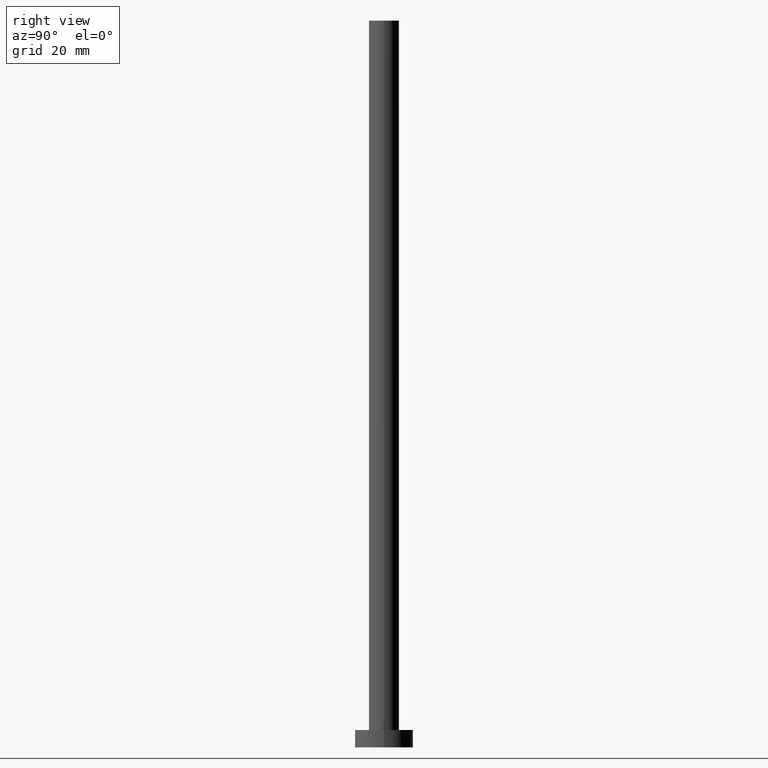
[diagram: clean part render]
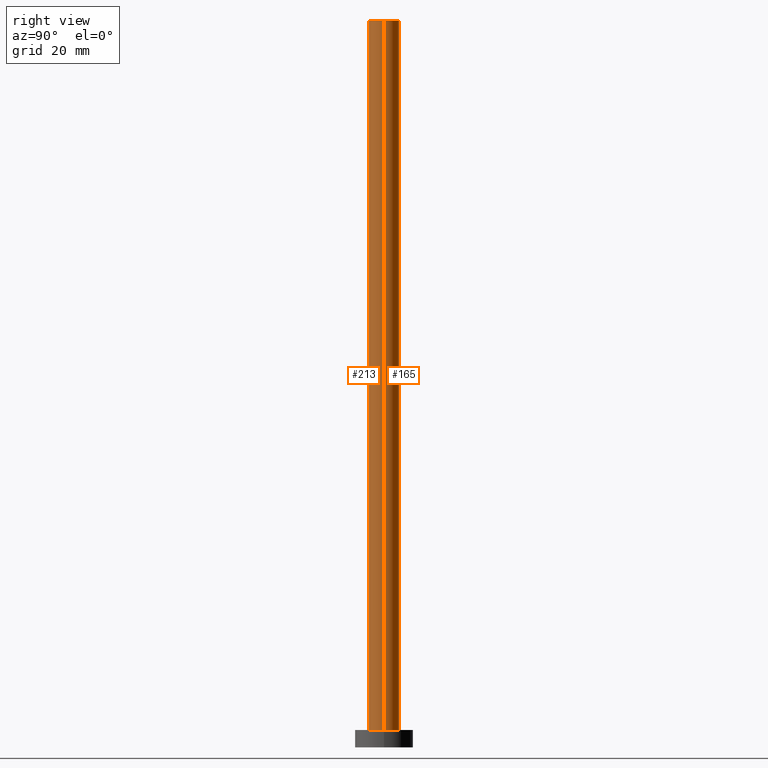
[diagram: same view with one multi-face feature highlighted, each face labeled with its STEP entity id]
A machine part, right view. The highlighted faces form ONE feature: a constant-radius fillet chain: 2 tangent blend faces with common blend radius 2.6 mm. The faces share edges in the B-rep.
Their STEP definitions:
[1] entity #165 (Cylinder):
#4 = DIRECTION ( 'NONE',  ( -1.000000000000000000, 0.000000000000000000, 0.000000000000000000 ) ) ;
#10 = ORIENTED_EDGE ( 'NONE', *, *, #112, .F. ) ;
#17 = VECTOR ( 'NONE', #118, 1000.000000000000000 ) ;
#23 = VERTEX_POINT ( 'NONE', #224 ) ;
#47 = LINE ( 'NONE', #133, #17 ) ;
#55 = CARTESIAN_POINT ( 'NONE',  ( 0.000000000000000000, 0.000000000000000000, 125.0000000000000000 ) ) ;
#69 = CARTESIAN_POINT ( 'NONE',  ( 0.000000000000000000, 0.000000000000000000, 3.000000000000000000 ) ) ;
#83 = DIRECTION ( 'NONE',  ( 0.000000000000000000, 0.000000000000000000, 1.000000000000000000 ) ) ;
#87 = LINE ( 'NONE', #173, #215 ) ;
#91 = ORIENTED_EDGE ( 'NONE', *, *, #233, .T. ) ;
#106 = CARTESIAN_POINT ( 'NONE',  ( 0.000000000000000000, 0.000000000000000000, 125.0000000000000000 ) ) ;
#107 = VERTEX_POINT ( 'NONE', #161 ) ;
#112 = EDGE_CURVE ( 'NONE', #107, #221, #87, .T. ) ;
#118 = DIRECTION ( 'NONE',  ( -0.000000000000000000, -0.000000000000000000, -1.000000000000000000 ) ) ;
#126 = ORIENTED_EDGE ( 'NONE', *, *, #153, .T. ) ;
#128 = DIRECTION ( 'NONE',  ( 1.000000000000000000, 0.000000000000000000, 0.000000000000000000 ) ) ;
#133 = CARTESIAN_POINT ( 'NONE',  ( 2.600000000000000089, 3.184081677783117698E-16, 125.0000000000000000 ) ) ;
#135 = DIRECTION ( 'NONE',  ( -0.000000000000000000, -0.000000000000000000, -1.000000000000000000 ) ) ;
#142 = DIRECTION ( 'NONE',  ( 0.000000000000000000, 0.000000000000000000, 1.000000000000000000 ) ) ;
#146 = AXIS2_PLACEMENT_3D ( 'NONE', #55, #142, #219 ) ;
#153 = EDGE_CURVE ( 'NONE', #23, #209, #47, .T. ) ;
#161 = CARTESIAN_POINT ( 'NONE',  ( -2.600000000000000089, 0.000000000000000000, 125.0000000000000000 ) ) ;
#165 = ADVANCED_FACE ( 'NONE', ( #236 ), #220, .T. ) ;
#167 = CIRCLE ( 'NONE', #146, 2.600000000000000089 ) ;
#171 = CIRCLE ( 'NONE', #237, 2.600000000000000089 ) ;
#173 = CARTESIAN_POINT ( 'NONE',  ( -2.600000000000000089, 0.000000000000000000, 125.0000000000000000 ) ) ;
#183 = EDGE_CURVE ( 'NONE', #23, #107, #167, .T. ) ;
#186 = EDGE_LOOP ( 'NONE', ( #187, #126, #91, #10 ) ) ;
#187 = ORIENTED_EDGE ( 'NONE', *, *, #183, .F. ) ;
#197 = AXIS2_PLACEMENT_3D ( 'NONE', #106, #239, #4 ) ;
#198 = CARTESIAN_POINT ( 'NONE',  ( 2.600000000000000089, 3.184081677783117698E-16, 3.000000000000000000 ) ) ;
#209 = VERTEX_POINT ( 'NONE', #198 ) ;
#215 = VECTOR ( 'NONE', #135, 1000.000000000000000 ) ;
#219 = DIRECTION ( 'NONE',  ( 1.000000000000000000, 0.000000000000000000, 0.000000000000000000 ) ) ;
#220 = CYLINDRICAL_SURFACE ( 'NONE', #197, 2.600000000000000089 ) ;
#221 = VERTEX_POINT ( 'NONE', #252 ) ;
#224 = CARTESIAN_POINT ( 'NONE',  ( 2.600000000000000089, 3.184081677783117698E-16, 125.0000000000000000 ) ) ;
#233 = EDGE_CURVE ( 'NONE', #209, #221, #171, .T. ) ;
#236 = FACE_OUTER_BOUND ( 'NONE', #186, .T. ) ;
#237 = AXIS2_PLACEMENT_3D ( 'NONE', #69, #83, #128 ) ;
#239 = DIRECTION ( 'NONE',  ( -0.000000000000000000, -0.000000000000000000, -1.000000000000000000 ) ) ;
#252 = CARTESIAN_POINT ( 'NONE',  ( -2.600000000000000089, 0.000000000000000000, 3.000000000000000000 ) ) ;
[2] entity #213 (Cylinder):
#7 = ORIENTED_EDGE ( 'NONE', *, *, #31, .T. ) ;
#12 = AXIS2_PLACEMENT_3D ( 'NONE', #76, #155, #241 ) ;
#17 = VECTOR ( 'NONE', #118, 1000.000000000000000 ) ;
#23 = VERTEX_POINT ( 'NONE', #224 ) ;
#25 = CYLINDRICAL_SURFACE ( 'NONE', #12, 2.600000000000000089 ) ;
#31 = EDGE_CURVE ( 'NONE', #221, #209, #177, .T. ) ;
#32 = AXIS2_PLACEMENT_3D ( 'NONE', #206, #250, #67 ) ;
#42 = EDGE_CURVE ( 'NONE', #107, #23, #162, .T. ) ;
#47 = LINE ( 'NONE', #133, #17 ) ;
#51 = DIRECTION ( 'NONE',  ( 1.000000000000000000, 0.000000000000000000, 0.000000000000000000 ) ) ;
#67 = DIRECTION ( 'NONE',  ( 1.000000000000000000, 0.000000000000000000, 0.000000000000000000 ) ) ;
#76 = CARTESIAN_POINT ( 'NONE',  ( 0.000000000000000000, 0.000000000000000000, 125.0000000000000000 ) ) ;
#78 = ORIENTED_EDGE ( 'NONE', *, *, #112, .T. ) ;
#80 = AXIS2_PLACEMENT_3D ( 'NONE', #228, #95, #51 ) ;
#87 = LINE ( 'NONE', #173, #215 ) ;
#89 = FACE_OUTER_BOUND ( 'NONE', #115, .T. ) ;
#95 = DIRECTION ( 'NONE',  ( 0.000000000000000000, 0.000000000000000000, 1.000000000000000000 ) ) ;
#96 = ORIENTED_EDGE ( 'NONE', *, *, #42, .F. ) ;
#107 = VERTEX_POINT ( 'NONE', #161 ) ;
#112 = EDGE_CURVE ( 'NONE', #107, #221, #87, .T. ) ;
#115 = EDGE_LOOP ( 'NONE', ( #164, #96, #78, #7 ) ) ;
#118 = DIRECTION ( 'NONE',  ( -0.000000000000000000, -0.000000000000000000, -1.000000000000000000 ) ) ;
#133 = CARTESIAN_POINT ( 'NONE',  ( 2.600000000000000089, 3.184081677783117698E-16, 125.0000000000000000 ) ) ;
#135 = DIRECTION ( 'NONE',  ( -0.000000000000000000, -0.000000000000000000, -1.000000000000000000 ) ) ;
#153 = EDGE_CURVE ( 'NONE', #23, #209, #47, .T. ) ;
#155 = DIRECTION ( 'NONE',  ( -0.000000000000000000, -0.000000000000000000, -1.000000000000000000 ) ) ;
#161 = CARTESIAN_POINT ( 'NONE',  ( -2.600000000000000089, 0.000000000000000000, 125.0000000000000000 ) ) ;
#162 = CIRCLE ( 'NONE', #80, 2.600000000000000089 ) ;
#164 = ORIENTED_EDGE ( 'NONE', *, *, #153, .F. ) ;
#173 = CARTESIAN_POINT ( 'NONE',  ( -2.600000000000000089, 0.000000000000000000, 125.0000000000000000 ) ) ;
#177 = CIRCLE ( 'NONE', #32, 2.600000000000000089 ) ;
#198 = CARTESIAN_POINT ( 'NONE',  ( 2.600000000000000089, 3.184081677783117698E-16, 3.000000000000000000 ) ) ;
#206 = CARTESIAN_POINT ( 'NONE',  ( 0.000000000000000000, 0.000000000000000000, 3.000000000000000000 ) ) ;
#209 = VERTEX_POINT ( 'NONE', #198 ) ;
#213 = ADVANCED_FACE ( 'NONE', ( #89 ), #25, .T. ) ;
#215 = VECTOR ( 'NONE', #135, 1000.000000000000000 ) ;
#221 = VERTEX_POINT ( 'NONE', #252 ) ;
#224 = CARTESIAN_POINT ( 'NONE',  ( 2.600000000000000089, 3.184081677783117698E-16, 125.0000000000000000 ) ) ;
#228 = CARTESIAN_POINT ( 'NONE',  ( 0.000000000000000000, 0.000000000000000000, 125.0000000000000000 ) ) ;
#241 = DIRECTION ( 'NONE',  ( -1.000000000000000000, 0.000000000000000000, 0.000000000000000000 ) ) ;
#250 = DIRECTION ( 'NONE',  ( 0.000000000000000000, 0.000000000000000000, 1.000000000000000000 ) ) ;
#252 = CARTESIAN_POINT ( 'NONE',  ( -2.600000000000000089, 0.000000000000000000, 3.000000000000000000 ) ) ;